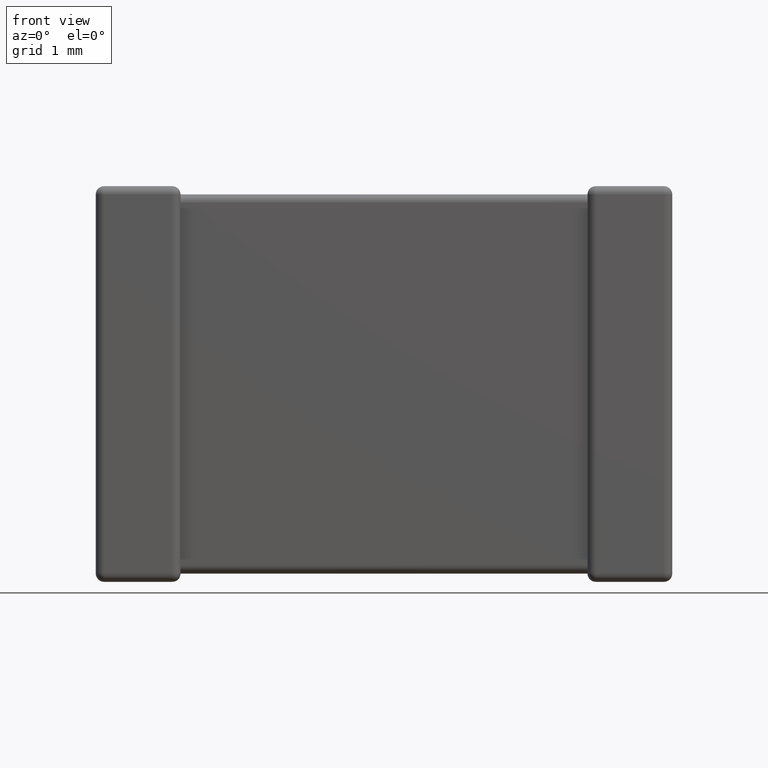
[diagram: clean part render]
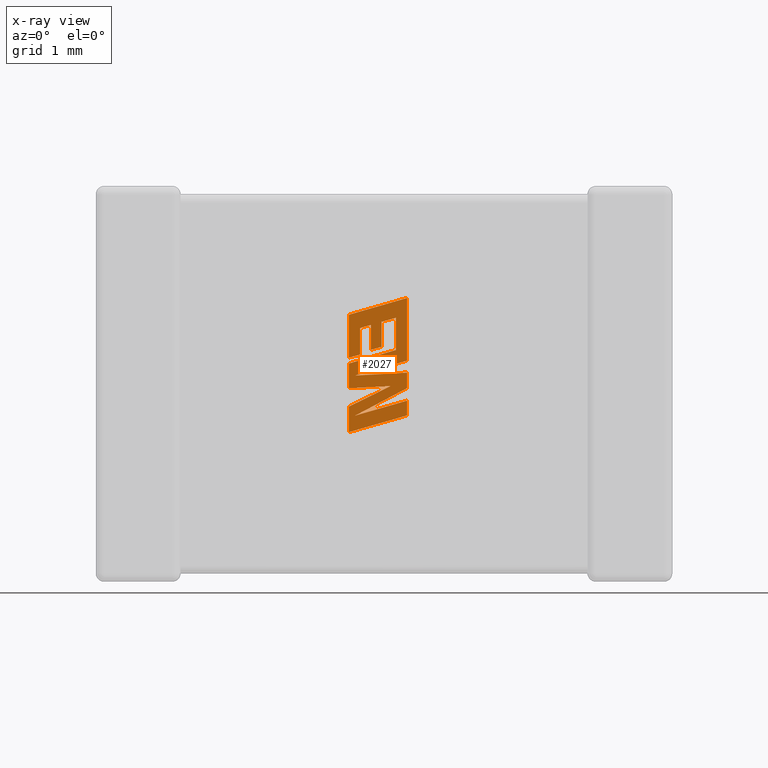
[diagram: x-ray — body ghosted, one internal face saturated and labeled with its STEP entity id]
A machine part, front view, then the same camera in x-ray: the body is ghosted and one INTERNAL B-rep face — a face not visible from any outside direction — is saturated and labeled: STEP entity #2027.
In plain terms, the highlighted planar face has unit normal (0, -1, 0).
Its self-contained STEP definition (entity closure, byte-faithful):
#11 = ORIENTED_EDGE ( 'NONE', *, *, #1997, .F. ) ;
#66 = VECTOR ( 'NONE', #158, 1000.000000000000000 ) ;
#93 = VERTEX_POINT ( 'NONE', #2405 ) ;
#97 = ORIENTED_EDGE ( 'NONE', *, *, #3681, .F. ) ;
#113 = VECTOR ( 'NONE', #4289, 1000.000000000000000 ) ;
#118 = CARTESIAN_POINT ( 'NONE',  ( 2.239461455074788443, 1.827199999999999935, -1.518180063271352687 ) ) ;
#137 = EDGE_CURVE ( 'NONE', #2815, #2668, #1038, .T. ) ;
#158 = DIRECTION ( 'NONE',  ( 0.000000000000000000, 0.000000000000000000, -1.000000000000000000 ) ) ;
#184 = LINE ( 'NONE', #1660, #3627 ) ;
#194 = ORIENTED_EDGE ( 'NONE', *, *, #2618, .F. ) ;
#209 = EDGE_CURVE ( 'NONE', #4183, #4625, #466, .T. ) ;
#210 = CARTESIAN_POINT ( 'NONE',  ( 2.337401225116401360, 1.827199999999999935, -1.255934090619534649 ) ) ;
#255 = LINE ( 'NONE', #618, #2554 ) ;
#274 = CARTESIAN_POINT ( 'NONE',  ( 2.433105313117772006, 1.827199999999999935, -1.448931806827066682 ) ) ;
#321 = VERTEX_POINT ( 'NONE', #2911 ) ;
#332 = CARTESIAN_POINT ( 'NONE',  ( 2.754000000000007109, 1.827199999999999935, -1.544308912229137354 ) ) ;
#341 = ORIENTED_EDGE ( 'NONE', *, *, #4564, .F. ) ;
#357 = VERTEX_POINT ( 'NONE', #3247 ) ;
#412 = EDGE_CURVE ( 'NONE', #2474, #1781, #2499, .T. ) ;
#458 = VECTOR ( 'NONE', #2581, 1000.000000000000000 ) ;
#466 = LINE ( 'NONE', #210, #4247 ) ;
#483 = ORIENTED_EDGE ( 'NONE', *, *, #4690, .F. ) ;
#512 = LINE ( 'NONE', #2758, #113 ) ;
#530 = VECTOR ( 'NONE', #2077, 1000.000000000000114 ) ;
#573 = VERTEX_POINT ( 'NONE', #1187 ) ;
#583 = EDGE_CURVE ( 'NONE', #2668, #2298, #4501, .T. ) ;
#594 = LINE ( 'NONE', #947, #1925 ) ;
#618 = CARTESIAN_POINT ( 'NONE',  ( 2.754000000000007109, 1.827199999999999935, -1.544308912229137354 ) ) ;
#647 = CARTESIAN_POINT ( 'NONE',  ( 2.433105313117772006, 1.827199999999999935, -1.228085846872917664 ) ) ;
#668 = EDGE_CURVE ( 'NONE', #357, #1145, #512, .T. ) ;
#722 = CARTESIAN_POINT ( 'NONE',  ( 2.239461455074788443, 1.827199999999999935, -2.176825446628522176 ) ) ;
#796 = DIRECTION ( 'NONE',  ( 0.9610853065513847993, 0.000000000000000000, 0.2762517575166369421 ) ) ;
#823 = DIRECTION ( 'NONE',  ( 0.000000000000000000, 0.000000000000000000, -1.000000000000000000 ) ) ;
#829 = ORIENTED_EDGE ( 'NONE', *, *, #2709, .F. ) ;
#854 = ORIENTED_EDGE ( 'NONE', *, *, #412, .F. ) ;
#867 = DIRECTION ( 'NONE',  ( 0.000000000000000000, 0.000000000000000000, 1.000000000000000000 ) ) ;
#889 = CARTESIAN_POINT ( 'NONE',  ( -0.6990152987310016552, 1.827199999999999935, 0.007919489514314502487 ) ) ;
#927 = EDGE_CURVE ( 'NONE', #3976, #4458, #3805, .T. ) ;
#947 = CARTESIAN_POINT ( 'NONE',  ( 2.754000000000007109, 1.827199999999999935, -1.650160399609248874 ) ) ;
#988 = VECTOR ( 'NONE', #1216, 1000.000000000000000 ) ;
#1024 = EDGE_CURVE ( 'NONE', #3717, #2319, #184, .T. ) ;
#1027 = ORIENTED_EDGE ( 'NONE', *, *, #4475, .F. ) ;
#1038 = LINE ( 'NONE', #2951, #4622 ) ;
#1051 = ORIENTED_EDGE ( 'NONE', *, *, #137, .F. ) ;
#1055 = EDGE_CURVE ( 'NONE', #4625, #2815, #1073, .T. ) ;
#1073 = LINE ( 'NONE', #2124, #1856 ) ;
#1090 = CARTESIAN_POINT ( 'NONE',  ( 2.528225839607042058, 1.827199999999999935, -1.200947889792602474 ) ) ;
#1094 = CARTESIAN_POINT ( 'NONE',  ( 2.656108729707781002, 1.827199999999999935, -1.164510496710604137 ) ) ;
#1145 = VERTEX_POINT ( 'NONE', #2630 ) ;
#1155 = ORIENTED_EDGE ( 'NONE', *, *, #668, .F. ) ;
#1184 = PLANE ( 'NONE',  #1832 ) ;
#1187 = CARTESIAN_POINT ( 'NONE',  ( 2.754000000000007109, 1.827199999999999935, -1.787331774155181074 ) ) ;
#1216 = DIRECTION ( 'NONE',  ( 0.000000000000000000, 0.000000000000000000, -1.000000000000000000 ) ) ;
#1233 = CARTESIAN_POINT ( 'NONE',  ( 2.433105313117772006, 1.827199999999999935, -1.448931806827066682 ) ) ;
#1394 = LINE ( 'NONE', #647, #1852 ) ;
#1395 = DIRECTION ( 'NONE',  ( 0.000000000000000000, 0.000000000000000000, 1.000000000000000000 ) ) ;
#1423 = EDGE_CURVE ( 'NONE', #1145, #2474, #4495, .T. ) ;
#1436 = VECTOR ( 'NONE', #4142, 1000.000000000000000 ) ;
#1448 = ORIENTED_EDGE ( 'NONE', *, *, #2057, .F. ) ;
#1473 = EDGE_CURVE ( 'NONE', #3377, #3717, #1544, .T. ) ;
#1514 = DIRECTION ( 'NONE',  ( 0.000000000000000000, 0.000000000000000000, -1.000000000000000000 ) ) ;
#1544 = LINE ( 'NONE', #722, #4357 ) ;
#1550 = VECTOR ( 'NONE', #4427, 1000.000000000000114 ) ;
#1569 = LINE ( 'NONE', #2716, #1436 ) ;
#1617 = VERTEX_POINT ( 'NONE', #3539 ) ;
#1625 = FACE_OUTER_BOUND ( 'NONE', #2128, .T. ) ;
#1636 = CARTESIAN_POINT ( 'NONE',  ( 2.528225839607042058, 1.827199999999999935, -1.200947889792602474 ) ) ;
#1638 = LINE ( 'NONE', #2008, #4272 ) ;
#1660 = CARTESIAN_POINT ( 'NONE',  ( 2.239461455074788443, 1.827199999999999935, -1.951152340343301539 ) ) ;
#1690 = CARTESIAN_POINT ( 'NONE',  ( 2.293713901613331441, 1.827199999999999935, -2.030318652395434409 ) ) ;
#1772 = VECTOR ( 'NONE', #3184, 1000.000000000000114 ) ;
#1781 = VERTEX_POINT ( 'NONE', #2343 ) ;
#1805 = CARTESIAN_POINT ( 'NONE',  ( 2.295919857998912850, 1.827199999999999935, -1.675837106146426336 ) ) ;
#1808 = CARTESIAN_POINT ( 'NONE',  ( 2.656108729707781002, 1.827199999999999935, -1.449742222008734815 ) ) ;
#1832 = AXIS2_PLACEMENT_3D ( 'NONE', #889, #2667, #823 ) ;
#1852 = VECTOR ( 'NONE', #2131, 1000.000000000000227 ) ;
#1856 = VECTOR ( 'NONE', #3972, 999.9999999999998863 ) ;
#1877 = DIRECTION ( 'NONE',  ( 0.000000000000000000, 0.000000000000000000, 1.000000000000000000 ) ) ;
#1925 = VECTOR ( 'NONE', #3227, 1000.000000000000000 ) ;
#1956 = CARTESIAN_POINT ( 'NONE',  ( 2.433105313117772006, 1.827199999999999935, -1.228085846872917664 ) ) ;
#1970 = CARTESIAN_POINT ( 'NONE',  ( 2.239461455074788443, 1.827199999999999935, -2.176825446628522176 ) ) ;
#1997 = EDGE_CURVE ( 'NONE', #2298, #2658, #1569, .T. ) ;
#2008 = CARTESIAN_POINT ( 'NONE',  ( 2.607054402578548036, 1.827199999999999935, -1.768838267633026984 ) ) ;
#2027 = ADVANCED_FACE ( 'NONE', ( #1625 ), #1184, .T. ) ;
#2057 = EDGE_CURVE ( 'NONE', #3830, #3106, #2284, .T. ) ;
#2077 = DIRECTION ( 'NONE',  ( -0.9615454294334447871, 0.000000000000000000, -0.2746459304917005517 ) ) ;
#2085 = CARTESIAN_POINT ( 'NONE',  ( 2.656108729707781002, 1.827199999999999935, -1.449742222008734815 ) ) ;
#2109 = LINE ( 'NONE', #3901, #3255 ) ;
#2124 = CARTESIAN_POINT ( 'NONE',  ( 2.337401225116401360, 1.827199999999999935, -1.490363109686198895 ) ) ;
#2128 = EDGE_LOOP ( 'NONE', ( #3445, #1027, #483, #341, #194, #97, #829, #4037, #11, #2159, #1051, #3274, #4200, #3317, #1448, #3098, #2885, #4589, #854, #4107, #1155, #4516, #2536 ) ) ;
#2131 = DIRECTION ( 'NONE',  ( -0.9601763114327565019, 0.000000000000000000, -0.2793947940878393488 ) ) ;
#2159 = ORIENTED_EDGE ( 'NONE', *, *, #583, .F. ) ;
#2284 = LINE ( 'NONE', #1233, #3002 ) ;
#2298 = VERTEX_POINT ( 'NONE', #4286 ) ;
#2319 = VERTEX_POINT ( 'NONE', #3231 ) ;
#2343 = CARTESIAN_POINT ( 'NONE',  ( 2.656108729707781002, 1.827199999999999935, -1.164510496710604137 ) ) ;
#2405 = CARTESIAN_POINT ( 'NONE',  ( 2.754000000000007109, 1.827199999999999935, -1.898139623118868524 ) ) ;
#2474 = VERTEX_POINT ( 'NONE', #1808 ) ;
#2499 = LINE ( 'NONE', #2085, #3946 ) ;
#2536 = ORIENTED_EDGE ( 'NONE', *, *, #1024, .F. ) ;
#2554 = VECTOR ( 'NONE', #4346, 1000.000000000000000 ) ;
#2581 = DIRECTION ( 'NONE',  ( -0.9617234872620624708, 0.000000000000000000, -0.2740217765953968931 ) ) ;
#2618 = EDGE_CURVE ( 'NONE', #573, #321, #4592, .T. ) ;
#2630 = CARTESIAN_POINT ( 'NONE',  ( 2.239461455074788443, 1.827199999999999935, -1.569502186183909798 ) ) ;
#2658 = VERTEX_POINT ( 'NONE', #332 ) ;
#2667 = DIRECTION ( 'NONE',  ( 0.000000000000000000, -1.000000000000000000, 0.000000000000000000 ) ) ;
#2668 = VERTEX_POINT ( 'NONE', #3668 ) ;
#2704 = CARTESIAN_POINT ( 'NONE',  ( 2.337401225116401360, 1.827199999999999935, -1.490363109686198895 ) ) ;
#2709 = EDGE_CURVE ( 'NONE', #3525, #3704, #4374, .T. ) ;
#2716 = CARTESIAN_POINT ( 'NONE',  ( 2.754000000000007109, 1.827199999999999935, -1.452722609482480554 ) ) ;
#2758 = CARTESIAN_POINT ( 'NONE',  ( 2.239461455074788443, 1.827199999999999935, -1.788625948747415650 ) ) ;
#2776 = VECTOR ( 'NONE', #796, 1000.000000000000114 ) ;
#2802 = DIRECTION ( 'NONE',  ( -0.9610674221107078363, 0.000000000000000000, -0.2763139702539094134 ) ) ;
#2815 = VERTEX_POINT ( 'NONE', #118 ) ;
#2846 = CARTESIAN_POINT ( 'NONE',  ( 2.754000000000007109, 1.827199999999999935, -1.787331774155181074 ) ) ;
#2850 = EDGE_CURVE ( 'NONE', #2319, #357, #1638, .T. ) ;
#2885 = ORIENTED_EDGE ( 'NONE', *, *, #927, .F. ) ;
#2911 = CARTESIAN_POINT ( 'NONE',  ( 2.293713901613331441, 1.827199999999999935, -2.030318652395434409 ) ) ;
#2940 = CARTESIAN_POINT ( 'NONE',  ( 2.239461455074788443, 1.827199999999999935, -1.138056229662791852 ) ) ;
#2951 = CARTESIAN_POINT ( 'NONE',  ( 2.239461455074788443, 1.827199999999999935, -1.518180063271352687 ) ) ;
#2958 = LINE ( 'NONE', #1094, #458 ) ;
#3002 = VECTOR ( 'NONE', #867, 1000.000000000000000 ) ;
#3098 = ORIENTED_EDGE ( 'NONE', *, *, #3710, .F. ) ;
#3106 = VERTEX_POINT ( 'NONE', #1956 ) ;
#3184 = DIRECTION ( 'NONE',  ( 0.9611542233438712390, 0.000000000000000000, 0.2760118818968482213 ) ) ;
#3227 = DIRECTION ( 'NONE',  ( 0.000000000000000000, 0.000000000000000000, -1.000000000000000000 ) ) ;
#3231 = CARTESIAN_POINT ( 'NONE',  ( 2.607054402578548036, 1.827199999999999935, -1.768838267633026984 ) ) ;
#3247 = CARTESIAN_POINT ( 'NONE',  ( 2.239461455074788443, 1.827199999999999935, -1.788625948747415650 ) ) ;
#3255 = VECTOR ( 'NONE', #2802, 1000.000000000000227 ) ;
#3274 = ORIENTED_EDGE ( 'NONE', *, *, #1055, .F. ) ;
#3317 = ORIENTED_EDGE ( 'NONE', *, *, #4490, .F. ) ;
#3377 = VERTEX_POINT ( 'NONE', #1970 ) ;
#3439 = CARTESIAN_POINT ( 'NONE',  ( 2.754000000000007109, 1.827199999999999935, -1.898139623118868524 ) ) ;
#3443 = EDGE_CURVE ( 'NONE', #2658, #3525, #255, .T. ) ;
#3445 = ORIENTED_EDGE ( 'NONE', *, *, #1473, .F. ) ;
#3493 = DIRECTION ( 'NONE',  ( -0.9985542843760948362, 0.000000000000000000, -0.05375259206908060416 ) ) ;
#3525 = VERTEX_POINT ( 'NONE', #4019 ) ;
#3528 = CARTESIAN_POINT ( 'NONE',  ( 2.239461455074788443, 1.827199999999999935, -1.951152340343301539 ) ) ;
#3539 = CARTESIAN_POINT ( 'NONE',  ( 2.754000000000007109, 1.827199999999999935, -2.028891821030526010 ) ) ;
#3607 = CARTESIAN_POINT ( 'NONE',  ( 2.528225839607042058, 1.827199999999999935, -1.421762559585259877 ) ) ;
#3627 = VECTOR ( 'NONE', #4279, 1000.000000000000114 ) ;
#3642 = EDGE_CURVE ( 'NONE', #1781, #3976, #2958, .T. ) ;
#3668 = CARTESIAN_POINT ( 'NONE',  ( 2.239461455074788443, 1.827199999999999935, -1.138056229662791852 ) ) ;
#3681 = EDGE_CURVE ( 'NONE', #3704, #573, #594, .T. ) ;
#3682 = CARTESIAN_POINT ( 'NONE',  ( 2.337401225116401360, 1.827199999999999935, -1.255934090619534649 ) ) ;
#3704 = VERTEX_POINT ( 'NONE', #3924 ) ;
#3710 = EDGE_CURVE ( 'NONE', #4458, #3830, #3974, .T. ) ;
#3717 = VERTEX_POINT ( 'NONE', #3528 ) ;
#3738 = CARTESIAN_POINT ( 'NONE',  ( 2.239461455074788443, 1.827199999999999935, -1.569502186183909798 ) ) ;
#3805 = LINE ( 'NONE', #1636, #66 ) ;
#3830 = VERTEX_POINT ( 'NONE', #274 ) ;
#3847 = LINE ( 'NONE', #3439, #988 ) ;
#3901 = CARTESIAN_POINT ( 'NONE',  ( 2.754000000000007109, 1.827199999999999935, -2.028891821030526010 ) ) ;
#3924 = CARTESIAN_POINT ( 'NONE',  ( 2.754000000000007109, 1.827199999999999935, -1.650160399609248874 ) ) ;
#3946 = VECTOR ( 'NONE', #1395, 1000.000000000000000 ) ;
#3947 = DIRECTION ( 'NONE',  ( -0.8843386665637650301, 0.000000000000000000, -0.4668459304955136502 ) ) ;
#3972 = DIRECTION ( 'NONE',  ( -0.9619530280415479195, 0.000000000000000000, -0.2732148821746301914 ) ) ;
#3974 = LINE ( 'NONE', #4273, #530 ) ;
#3976 = VERTEX_POINT ( 'NONE', #1090 ) ;
#4019 = CARTESIAN_POINT ( 'NONE',  ( 2.295919857998912850, 1.827199999999999935, -1.675837106146426336 ) ) ;
#4037 = ORIENTED_EDGE ( 'NONE', *, *, #3443, .F. ) ;
#4042 = DIRECTION ( 'NONE',  ( 0.000000000000000000, 0.000000000000000000, 1.000000000000000000 ) ) ;
#4046 = DIRECTION ( 'NONE',  ( 0.9984327301130250243, 0.000000000000000000, 0.05596501978067342647 ) ) ;
#4107 = ORIENTED_EDGE ( 'NONE', *, *, #1423, .F. ) ;
#4142 = DIRECTION ( 'NONE',  ( 0.000000000000000000, 0.000000000000000000, -1.000000000000000000 ) ) ;
#4183 = VERTEX_POINT ( 'NONE', #3682 ) ;
#4200 = ORIENTED_EDGE ( 'NONE', *, *, #209, .F. ) ;
#4247 = VECTOR ( 'NONE', #1514, 1000.000000000000000 ) ;
#4272 = VECTOR ( 'NONE', #3493, 1000.000000000000114 ) ;
#4273 = CARTESIAN_POINT ( 'NONE',  ( 2.528225839607042058, 1.827199999999999935, -1.421762559585259877 ) ) ;
#4279 = DIRECTION ( 'NONE',  ( 0.8958676361826827250, 0.000000000000000000, 0.4443210308329466618 ) ) ;
#4286 = CARTESIAN_POINT ( 'NONE',  ( 2.754000000000007109, 1.827199999999999935, -0.9899927494813206552 ) ) ;
#4289 = DIRECTION ( 'NONE',  ( 0.000000000000000000, 0.000000000000000000, 1.000000000000000000 ) ) ;
#4301 = LINE ( 'NONE', #1690, #1772 ) ;
#4346 = DIRECTION ( 'NONE',  ( -0.9611638845408968512, 0.000000000000000000, -0.2759782365590690567 ) ) ;
#4357 = VECTOR ( 'NONE', #1877, 1000.000000000000000 ) ;
#4374 = LINE ( 'NONE', #1805, #4434 ) ;
#4427 = DIRECTION ( 'NONE',  ( 0.9610029908221285888, 0.000000000000000000, 0.2765379750249931656 ) ) ;
#4434 = VECTOR ( 'NONE', #4046, 1000.000000000000227 ) ;
#4458 = VERTEX_POINT ( 'NONE', #3607 ) ;
#4475 = EDGE_CURVE ( 'NONE', #1617, #3377, #2109, .T. ) ;
#4490 = EDGE_CURVE ( 'NONE', #3106, #4183, #1394, .T. ) ;
#4495 = LINE ( 'NONE', #3738, #2776 ) ;
#4501 = LINE ( 'NONE', #2940, #1550 ) ;
#4516 = ORIENTED_EDGE ( 'NONE', *, *, #2850, .F. ) ;
#4564 = EDGE_CURVE ( 'NONE', #321, #93, #4301, .T. ) ;
#4589 = ORIENTED_EDGE ( 'NONE', *, *, #3642, .F. ) ;
#4592 = LINE ( 'NONE', #2846, #4723 ) ;
#4622 = VECTOR ( 'NONE', #4042, 1000.000000000000000 ) ;
#4625 = VERTEX_POINT ( 'NONE', #2704 ) ;
#4690 = EDGE_CURVE ( 'NONE', #93, #1617, #3847, .T. ) ;
#4723 = VECTOR ( 'NONE', #3947, 1000.000000000000114 ) ;